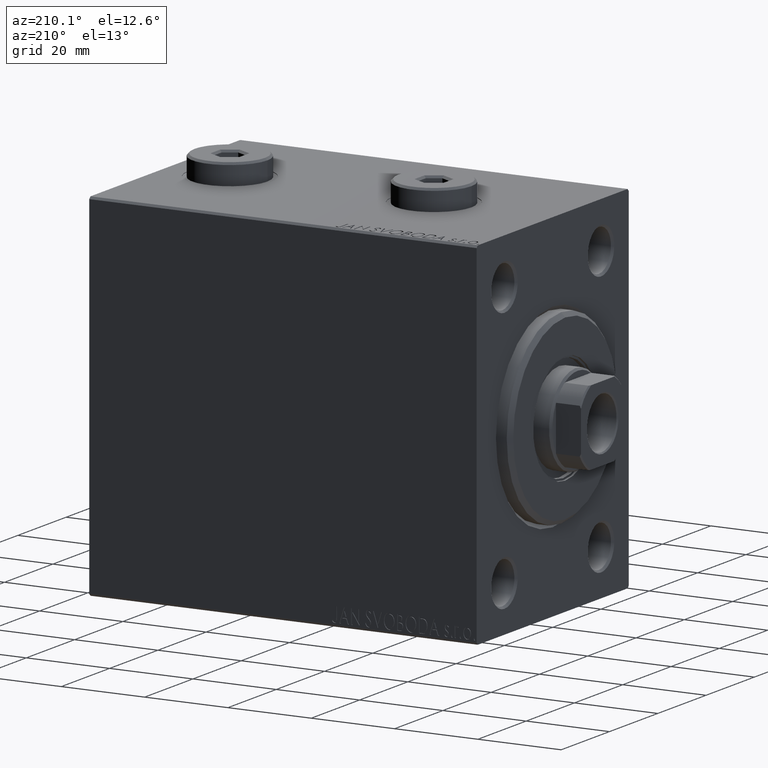
[diagram: clean part render]
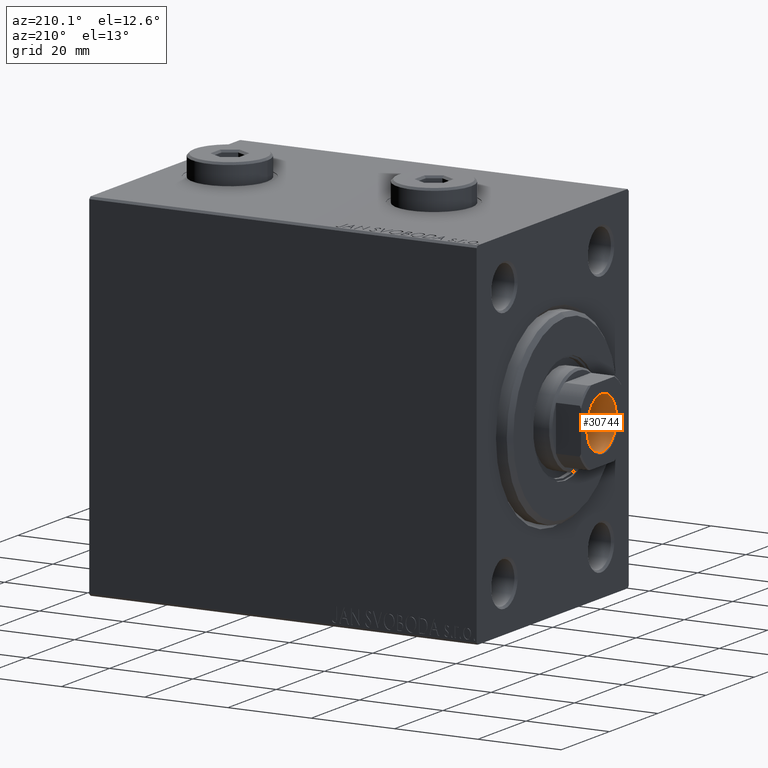
[diagram: same view with one face highlighted and labeled with its STEP entity id]
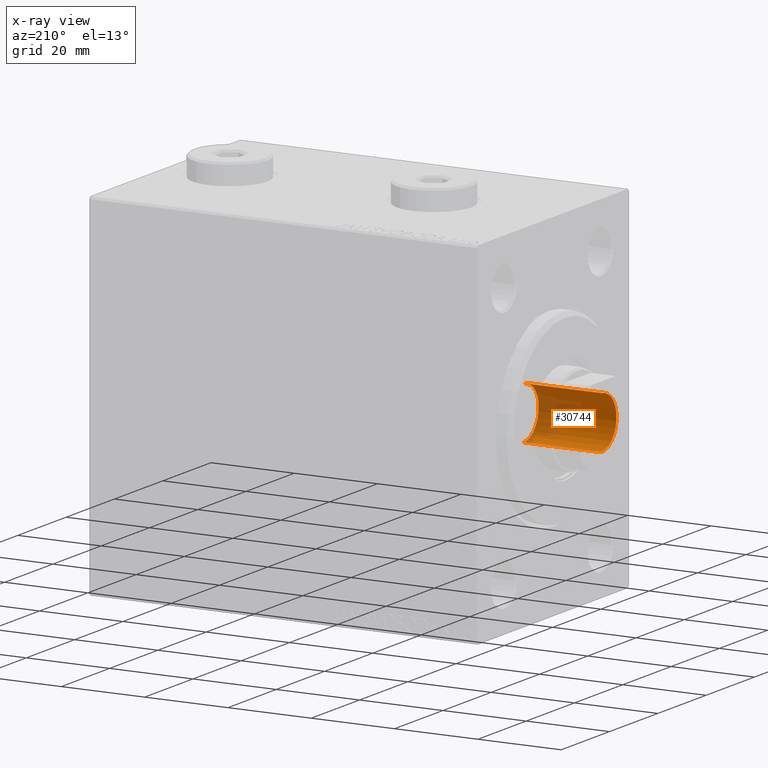
[diagram: x-ray of the same camera — body ghosted, the highlighted face saturated]
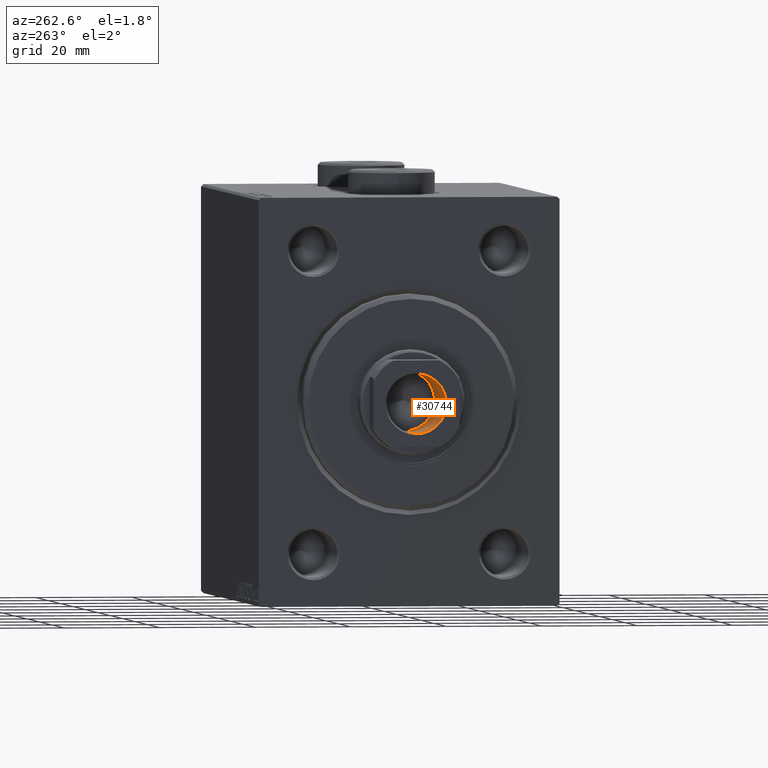
[diagram: same view with one face highlighted and labeled with its STEP entity id]
A machine part, auxiliary view. The second image highlights one B-rep face of the part: STEP entity #30744.
The next image is the same camera in x-ray: the body ghosted, the highlighted face saturated — about 33% of this face is hidden behind the body in this view.
A second angle (auxiliary view) of the same face is appended — the face is thin or edge-on in the first view.
In plain terms, the highlighted cylindrical surface (edge-blend (fillet) strip) has radius 6.25 mm, axis along (-1, 0, 0).
Its self-contained STEP definition (entity closure, byte-faithful):
#3265 = DIRECTION ( 'NONE',  ( -0.000000000000000000, -0.000000000000000000, 1.000000000000000000 ) ) ;
#6499 = CARTESIAN_POINT ( 'NONE',  ( 0.000000000000000000, 0.000000000000000000, 93.00000000000000000 ) ) ;
#6860 = VERTEX_POINT ( 'NONE', #44926 ) ;
#6910 = EDGE_CURVE ( 'NONE', #24262, #30228, #32687, .T. ) ;
#8045 = CARTESIAN_POINT ( 'NONE',  ( 6.249999999999996447, 0.000000000000000000, 93.00000000000000000 ) ) ;
#8878 = EDGE_CURVE ( 'NONE', #35527, #6860, #24436, .T. ) ;
#9824 = DIRECTION ( 'NONE',  ( 1.000000000000000000, 0.000000000000000000, 0.000000000000000000 ) ) ;
#12291 = AXIS2_PLACEMENT_3D ( 'NONE', #33344, #12396, #9824 ) ;
#12396 = DIRECTION ( 'NONE',  ( -0.000000000000000000, -0.000000000000000000, 1.000000000000000000 ) ) ;
#12957 = FACE_OUTER_BOUND ( 'NONE', #31908, .T. ) ;
#14337 = CARTESIAN_POINT ( 'NONE',  ( -6.249999999999995559, 7.654042494670950704E-16, 74.00000000000000000 ) ) ;
#15415 = DIRECTION ( 'NONE',  ( -0.000000000000000000, -0.000000000000000000, 1.000000000000000000 ) ) ;
#16624 = CYLINDRICAL_SURFACE ( 'NONE', #25512, 6.249999999999996447 ) ;
#21093 = ORIENTED_EDGE ( 'NONE', *, *, #35250, .F. ) ;
#22169 = ORIENTED_EDGE ( 'NONE', *, *, #35997, .T. ) ;
#22316 = DIRECTION ( 'NONE',  ( 1.000000000000000000, 0.000000000000000000, 0.000000000000000000 ) ) ;
#24091 = CIRCLE ( 'NONE', #45426, 6.249999999999996447 ) ;
#24262 = VERTEX_POINT ( 'NONE', #35206 ) ;
#24436 = LINE ( 'NONE', #42640, #27766 ) ;
#25115 = DIRECTION ( 'NONE',  ( -0.000000000000000000, -0.000000000000000000, 1.000000000000000000 ) ) ;
#25512 = AXIS2_PLACEMENT_3D ( 'NONE', #6499, #3265, #27911 ) ;
#25764 = DIRECTION ( 'NONE',  ( 0.000000000000000000, 0.000000000000000000, 1.000000000000000000 ) ) ;
#27766 = VECTOR ( 'NONE', #25115, 1000.000000000000000 ) ;
#27911 = DIRECTION ( 'NONE',  ( 1.000000000000000000, 0.000000000000000000, 0.000000000000000000 ) ) ;
#30228 = VERTEX_POINT ( 'NONE', #30636 ) ;
#30636 = CARTESIAN_POINT ( 'NONE',  ( 6.249999999999996447, 0.000000000000000000, 92.70000000000000284 ) ) ;
#30663 = ORIENTED_EDGE ( 'NONE', *, *, #6910, .F. ) ;
#30744 = ADVANCED_FACE ( 'NONE', ( #12957 ), #16624, .F. ) ;
#30989 = ORIENTED_EDGE ( 'NONE', *, *, #8878, .T. ) ;
#31908 = EDGE_LOOP ( 'NONE', ( #21093, #30989, #22169, #30663 ) ) ;
#32687 = LINE ( 'NONE', #8045, #32861 ) ;
#32861 = VECTOR ( 'NONE', #15415, 1000.000000000000000 ) ;
#33344 = CARTESIAN_POINT ( 'NONE',  ( 0.000000000000000000, 0.000000000000000000, 74.00000000000000000 ) ) ;
#35206 = CARTESIAN_POINT ( 'NONE',  ( 6.249999999999995559, 0.000000000000000000, 74.00000000000000000 ) ) ;
#35250 = EDGE_CURVE ( 'NONE', #35527, #24262, #45394, .T. ) ;
#35527 = VERTEX_POINT ( 'NONE', #14337 ) ;
#35997 = EDGE_CURVE ( 'NONE', #6860, #30228, #24091, .T. ) ;
#42640 = CARTESIAN_POINT ( 'NONE',  ( -6.249999999999996447, 7.654042494670952676E-16, 93.00000000000000000 ) ) ;
#43282 = CARTESIAN_POINT ( 'NONE',  ( 0.000000000000000000, 0.000000000000000000, 92.70000000000000284 ) ) ;
#44926 = CARTESIAN_POINT ( 'NONE',  ( -6.249999999999996447, 7.654042494670952676E-16, 92.70000000000000284 ) ) ;
#45394 = CIRCLE ( 'NONE', #12291, 6.249999999999995559 ) ;
#45426 = AXIS2_PLACEMENT_3D ( 'NONE', #43282, #25764, #22316 ) ;